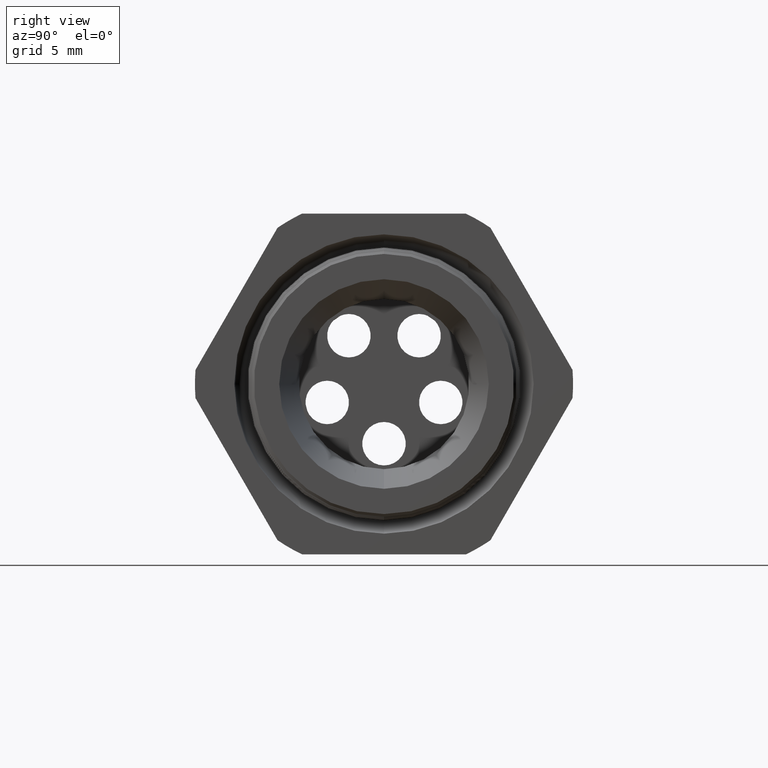
[diagram: clean part render]
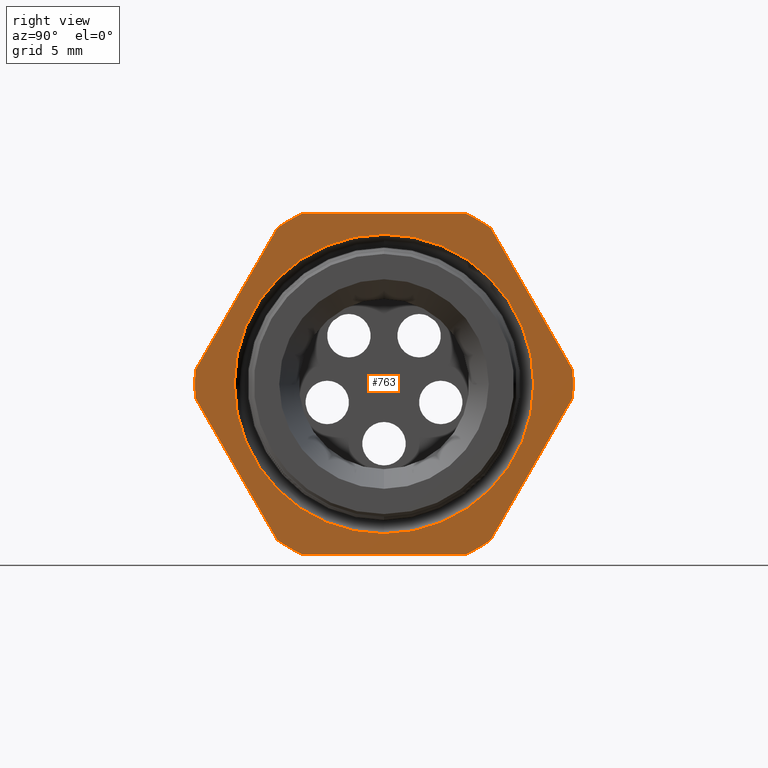
[diagram: same view with one face highlighted and labeled with its STEP entity id]
A machine part, right view. The second image highlights one B-rep face of the part: STEP entity #763.
In plain terms, the highlighted planar face has unit normal (1, 0, 0).
Its self-contained STEP definition (entity closure, byte-faithful):
#686 = ORIENTED_EDGE ( 'NONE', *, *, #687, .T. ) ;
#687 = EDGE_CURVE ( 'NONE', #772, #746, #3249, .T. ) ;
#731 = VERTEX_POINT ( 'NONE', #3325 ) ;
#732 = ORIENTED_EDGE ( 'NONE', *, *, #733, .T. ) ;
#733 = EDGE_CURVE ( 'NONE', #731, #734, #3324, .T. ) ;
#734 = VERTEX_POINT ( 'NONE', #3319 ) ;
#735 = ORIENTED_EDGE ( 'NONE', *, *, #736, .T. ) ;
#736 = EDGE_CURVE ( 'NONE', #734, #737, #3318, .T. ) ;
#737 = VERTEX_POINT ( 'NONE', #3314 ) ;
#738 = ORIENTED_EDGE ( 'NONE', *, *, #739, .T. ) ;
#739 = EDGE_CURVE ( 'NONE', #737, #740, #3313, .T. ) ;
#740 = VERTEX_POINT ( 'NONE', #3372 ) ;
#741 = ORIENTED_EDGE ( 'NONE', *, *, #742, .T. ) ;
#742 = EDGE_CURVE ( 'NONE', #740, #743, #3371, .T. ) ;
#743 = VERTEX_POINT ( 'NONE', #3367 ) ;
#744 = ORIENTED_EDGE ( 'NONE', *, *, #745, .T. ) ;
#745 = EDGE_CURVE ( 'NONE', #743, #771, #3366, .T. ) ;
#746 = VERTEX_POINT ( 'NONE', #3361 ) ;
#747 = ORIENTED_EDGE ( 'NONE', *, *, #748, .T. ) ;
#748 = EDGE_CURVE ( 'NONE', #746, #749, #3360, .T. ) ;
#749 = VERTEX_POINT ( 'NONE', #3356 ) ;
#750 = ORIENTED_EDGE ( 'NONE', *, *, #751, .T. ) ;
#751 = EDGE_CURVE ( 'NONE', #749, #752, #3355, .T. ) ;
#752 = VERTEX_POINT ( 'NONE', #3350 ) ;
#753 = ORIENTED_EDGE ( 'NONE', *, *, #754, .T. ) ;
#754 = EDGE_CURVE ( 'NONE', #752, #755, #3349, .T. ) ;
#755 = VERTEX_POINT ( 'NONE', #3345 ) ;
#756 = ORIENTED_EDGE ( 'NONE', *, *, #757, .T. ) ;
#757 = EDGE_CURVE ( 'NONE', #755, #758, #3407, .T. ) ;
#758 = VERTEX_POINT ( 'NONE', #3403 ) ;
#759 = ORIENTED_EDGE ( 'NONE', *, *, #760, .T. ) ;
#760 = EDGE_CURVE ( 'NONE', #758, #731, #3402, .T. ) ;
#763 = ADVANCED_FACE ( 'NONE', ( #3393, #3392 ), #3391, .T. ) ;
#764 = EDGE_LOOP ( 'NONE', ( #765, #767 ) ) ;
#765 = ORIENTED_EDGE ( 'NONE', *, *, #766, .F. ) ;
#766 = EDGE_CURVE ( 'NONE', #1680, #1677, #3386, .T. ) ;
#767 = ORIENTED_EDGE ( 'NONE', *, *, #1679, .F. ) ;
#768 = EDGE_LOOP ( 'NONE', ( #769, #686, #747, #750, #753, #756, #759, #732, #735, #738, #741, #744 ) ) ;
#769 = ORIENTED_EDGE ( 'NONE', *, *, #770, .T. ) ;
#770 = EDGE_CURVE ( 'NONE', #771, #772, #3381, .T. ) ;
#771 = VERTEX_POINT ( 'NONE', #3376 ) ;
#772 = VERTEX_POINT ( 'NONE', #3377 ) ;
#1677 = VERTEX_POINT ( 'NONE', #4846 ) ;
#1679 = EDGE_CURVE ( 'NONE', #1677, #1680, #4845, .T. ) ;
#1680 = VERTEX_POINT ( 'NONE', #4840 ) ;
#3245 = DIRECTION ( 'NONE',  ( 0.0000000000000000000, 0.0000000000000000000, -1.000000000000000000 ) ) ;
#3246 = DIRECTION ( 'NONE',  ( 1.000000000000000000, 0.0000000000000000000, 0.0000000000000000000 ) ) ;
#3247 = CARTESIAN_POINT ( 'NONE',  ( -0.3100000000000000000, 0.0000000000000000000, 0.0000000000000000000 ) ) ;
#3248 = AXIS2_PLACEMENT_3D ( 'NONE', #3247, #3246, #3245 ) ;
#3249 = CIRCLE ( 'NONE', #3248, 0.5217000000000000500 ) ;
#3312 = CARTESIAN_POINT ( 'NONE',  ( -0.3100000000000000000, 0.0000000000000000000, 0.0000000000000000000 ) ) ;
#3313 = CIRCLE ( 'NONE', #3375, 0.5217000000000000500 ) ;
#3314 = CARTESIAN_POINT ( 'NONE',  ( -0.3100000000000000000, -0.2938165587564942600, -0.4310947921287053300 ) ) ;
#3315 = DIRECTION ( 'NONE',  ( 0.0000000000000000000, 0.5000000000000001100, -0.8660254037844386000 ) ) ;
#3316 = VECTOR ( 'NONE', #3315, 39.37007874015748900 ) ;
#3317 = CARTESIAN_POINT ( 'NONE',  ( -0.3100000000000000000, -0.1720319397786862800, -0.6420319397786864400 ) ) ;
#3318 = LINE ( 'NONE', #3317, #3316 ) ;
#3319 = CARTESIAN_POINT ( 'NONE',  ( -0.3100000000000000000, -0.5202473208008777700, -0.03890520787129495000 ) ) ;
#3320 = DIRECTION ( 'NONE',  ( 0.0000000000000000000, 0.0000000000000000000, -1.000000000000000000 ) ) ;
#3321 = DIRECTION ( 'NONE',  ( 1.000000000000000000, 0.0000000000000000000, 0.0000000000000000000 ) ) ;
#3322 = CARTESIAN_POINT ( 'NONE',  ( -0.3100000000000000000, 0.0000000000000000000, 0.0000000000000000000 ) ) ;
#3323 = AXIS2_PLACEMENT_3D ( 'NONE', #3322, #3321, #3320 ) ;
#3324 = CIRCLE ( 'NONE', #3323, 0.5217000000000000500 ) ;
#3325 = CARTESIAN_POINT ( 'NONE',  ( -0.3100000000000000000, -0.5202473208008777700, 0.03890520787129464500 ) ) ;
#3344 = CARTESIAN_POINT ( 'NONE',  ( -0.3100000000000000000, 0.0000000000000000000, 0.0000000000000000000 ) ) ;
#3345 = CARTESIAN_POINT ( 'NONE',  ( -0.3100000000000000000, -0.2264307620443835300, 0.4699999999999997000 ) ) ;
#3346 = DIRECTION ( 'NONE',  ( 0.0000000000000000000, -1.000000000000000000, 0.0000000000000000000 ) ) ;
#3347 = VECTOR ( 'NONE', #3346, 39.37007874015748100 ) ;
#3348 = CARTESIAN_POINT ( 'NONE',  ( -0.3100000000000000000, 0.9399999999999999500, 0.4699999999999999200 ) ) ;
#3349 = LINE ( 'NONE', #3348, #3347 ) ;
#3350 = CARTESIAN_POINT ( 'NONE',  ( -0.3100000000000000000, 0.2264307620443832800, 0.4699999999999999200 ) ) ;
#3351 = DIRECTION ( 'NONE',  ( 0.0000000000000000000, 0.0000000000000000000, -1.000000000000000000 ) ) ;
#3352 = DIRECTION ( 'NONE',  ( 1.000000000000000000, 0.0000000000000000000, 0.0000000000000000000 ) ) ;
#3353 = CARTESIAN_POINT ( 'NONE',  ( -0.3100000000000000000, 0.0000000000000000000, 0.0000000000000000000 ) ) ;
#3354 = AXIS2_PLACEMENT_3D ( 'NONE', #3353, #3352, #3351 ) ;
#3355 = CIRCLE ( 'NONE', #3354, 0.5217000000000000500 ) ;
#3356 = CARTESIAN_POINT ( 'NONE',  ( -0.3100000000000000000, 0.2938165587564947600, 0.4310947921287048800 ) ) ;
#3357 = DIRECTION ( 'NONE',  ( 0.0000000000000000000, -0.5000000000000001100, 0.8660254037844386000 ) ) ;
#3358 = VECTOR ( 'NONE', #3357, 39.37007874015748100 ) ;
#3359 = CARTESIAN_POINT ( 'NONE',  ( -0.3100000000000000000, 0.6420319397786862200, -0.1720319397786861100 ) ) ;
#3360 = LINE ( 'NONE', #3359, #3358 ) ;
#3361 = CARTESIAN_POINT ( 'NONE',  ( -0.3100000000000000000, 0.5202473208008776600, 0.03890520787129531800 ) ) ;
#3362 = DIRECTION ( 'NONE',  ( 0.0000000000000000000, 0.0000000000000000000, -1.000000000000000000 ) ) ;
#3363 = DIRECTION ( 'NONE',  ( 1.000000000000000000, 0.0000000000000000000, 0.0000000000000000000 ) ) ;
#3364 = CARTESIAN_POINT ( 'NONE',  ( -0.3100000000000000000, 0.0000000000000000000, 0.0000000000000000000 ) ) ;
#3365 = AXIS2_PLACEMENT_3D ( 'NONE', #3364, #3363, #3362 ) ;
#3366 = CIRCLE ( 'NONE', #3365, 0.5217000000000000500 ) ;
#3367 = CARTESIAN_POINT ( 'NONE',  ( -0.3100000000000000000, 0.2264307620443831200, -0.4700000000000000300 ) ) ;
#3368 = DIRECTION ( 'NONE',  ( 0.0000000000000000000, 1.000000000000000000, 0.0000000000000000000 ) ) ;
#3369 = VECTOR ( 'NONE', #3368, 39.37007874015748100 ) ;
#3370 = CARTESIAN_POINT ( 'NONE',  ( -0.3100000000000000000, 0.9399999999999999500, -0.4700000000000000300 ) ) ;
#3371 = LINE ( 'NONE', #3370, #3369 ) ;
#3372 = CARTESIAN_POINT ( 'NONE',  ( -0.3100000000000000000, -0.2264307620443830900, -0.4700000000000000300 ) ) ;
#3373 = DIRECTION ( 'NONE',  ( 0.0000000000000000000, 0.0000000000000000000, -1.000000000000000000 ) ) ;
#3374 = DIRECTION ( 'NONE',  ( 1.000000000000000000, 0.0000000000000000000, 0.0000000000000000000 ) ) ;
#3375 = AXIS2_PLACEMENT_3D ( 'NONE', #3312, #3374, #3373 ) ;
#3376 = CARTESIAN_POINT ( 'NONE',  ( -0.3100000000000000000, 0.2938165587564948700, -0.4310947921287048800 ) ) ;
#3377 = CARTESIAN_POINT ( 'NONE',  ( -0.3100000000000000000, 0.5202473208008778800, -0.03890520787129497800 ) ) ;
#3378 = DIRECTION ( 'NONE',  ( 0.0000000000000000000, 0.4999999999999998300, 0.8660254037844388200 ) ) ;
#3379 = VECTOR ( 'NONE', #3378, 39.37007874015748100 ) ;
#3380 = CARTESIAN_POINT ( 'NONE',  ( -0.3100000000000000000, 0.6420319397786862200, 0.1720319397786860500 ) ) ;
#3381 = LINE ( 'NONE', #3380, #3379 ) ;
#3382 = DIRECTION ( 'NONE',  ( 0.0000000000000000000, 0.0000000000000000000, -1.000000000000000000 ) ) ;
#3383 = DIRECTION ( 'NONE',  ( 1.000000000000000000, 0.0000000000000000000, 0.0000000000000000000 ) ) ;
#3384 = CARTESIAN_POINT ( 'NONE',  ( -0.3100000000000000000, 0.0000000000000000000, 0.0000000000000000000 ) ) ;
#3385 = AXIS2_PLACEMENT_3D ( 'NONE', #3384, #3383, #3382 ) ;
#3386 = CIRCLE ( 'NONE', #3385, 0.4130016155952137600 ) ;
#3387 = DIRECTION ( 'NONE',  ( 0.0000000000000000000, 0.0000000000000000000, -1.000000000000000000 ) ) ;
#3388 = DIRECTION ( 'NONE',  ( 1.000000000000000000, 0.0000000000000000000, 0.0000000000000000000 ) ) ;
#3389 = CARTESIAN_POINT ( 'NONE',  ( -0.3100000000000000000, 0.9399999999999999500, 0.0000000000000000000 ) ) ;
#3390 = AXIS2_PLACEMENT_3D ( 'NONE', #3389, #3388, #3387 ) ;
#3391 = PLANE ( 'NONE',  #3390 ) ;
#3392 = FACE_OUTER_BOUND ( 'NONE', #768, .T. ) ;
#3393 = FACE_BOUND ( 'NONE', #764, .T. ) ;
#3399 = DIRECTION ( 'NONE',  ( 0.0000000000000000000, -0.4999999999999998300, -0.8660254037844388200 ) ) ;
#3400 = VECTOR ( 'NONE', #3399, 39.37007874015748100 ) ;
#3401 = CARTESIAN_POINT ( 'NONE',  ( -0.3100000000000000000, -0.1720319397786862800, 0.6420319397786858900 ) ) ;
#3402 = LINE ( 'NONE', #3401, #3400 ) ;
#3403 = CARTESIAN_POINT ( 'NONE',  ( -0.3100000000000000000, -0.2938165587564945900, 0.4310947921287050500 ) ) ;
#3404 = DIRECTION ( 'NONE',  ( 0.0000000000000000000, 0.0000000000000000000, -1.000000000000000000 ) ) ;
#3405 = DIRECTION ( 'NONE',  ( 1.000000000000000000, 0.0000000000000000000, 0.0000000000000000000 ) ) ;
#3406 = AXIS2_PLACEMENT_3D ( 'NONE', #3344, #3405, #3404 ) ;
#3407 = CIRCLE ( 'NONE', #3406, 0.5217000000000000500 ) ;
#4840 = CARTESIAN_POINT ( 'NONE',  ( -0.3100000000000000000, 0.0000000000000000000, -0.4130016155952137600 ) ) ;
#4841 = DIRECTION ( 'NONE',  ( 0.0000000000000000000, 0.0000000000000000000, -1.000000000000000000 ) ) ;
#4842 = DIRECTION ( 'NONE',  ( 1.000000000000000000, 0.0000000000000000000, 0.0000000000000000000 ) ) ;
#4843 = CARTESIAN_POINT ( 'NONE',  ( -0.3100000000000000000, 0.0000000000000000000, 0.0000000000000000000 ) ) ;
#4844 = AXIS2_PLACEMENT_3D ( 'NONE', #4843, #4842, #4841 ) ;
#4845 = CIRCLE ( 'NONE', #4844, 0.4130016155952137600 ) ;
#4846 = CARTESIAN_POINT ( 'NONE',  ( -0.3100000000000000000, 5.057811065813640600E-017, 0.4130016155952137600 ) ) ;